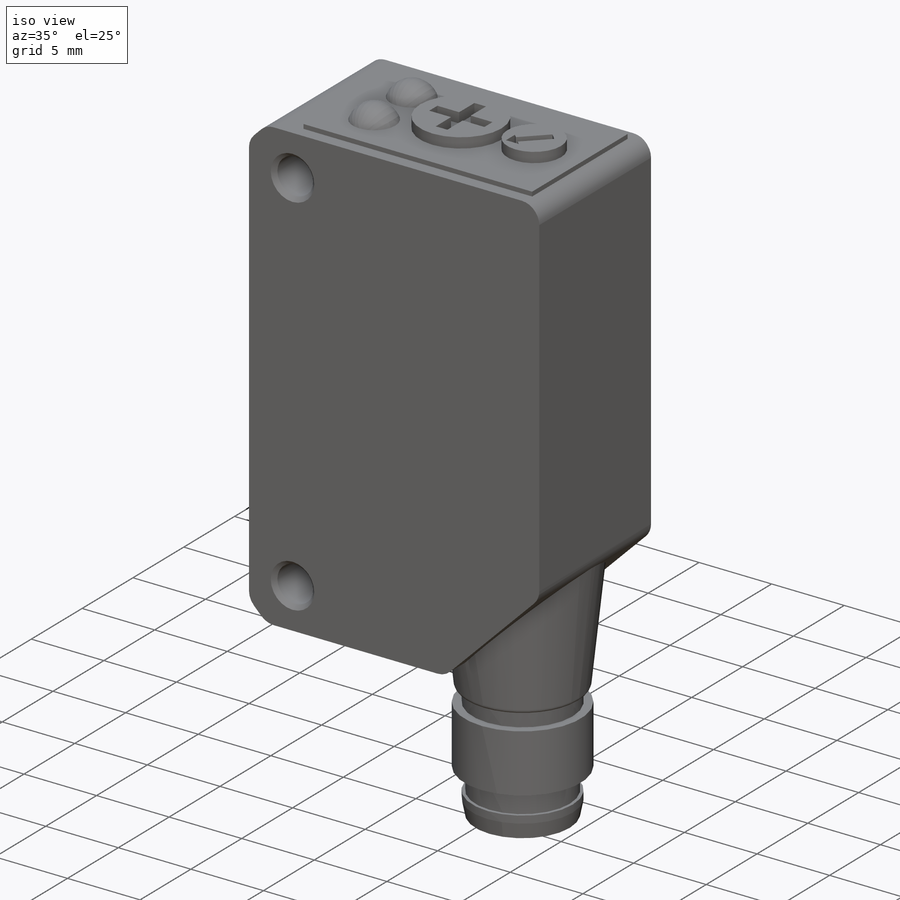
[diagram: iso view]
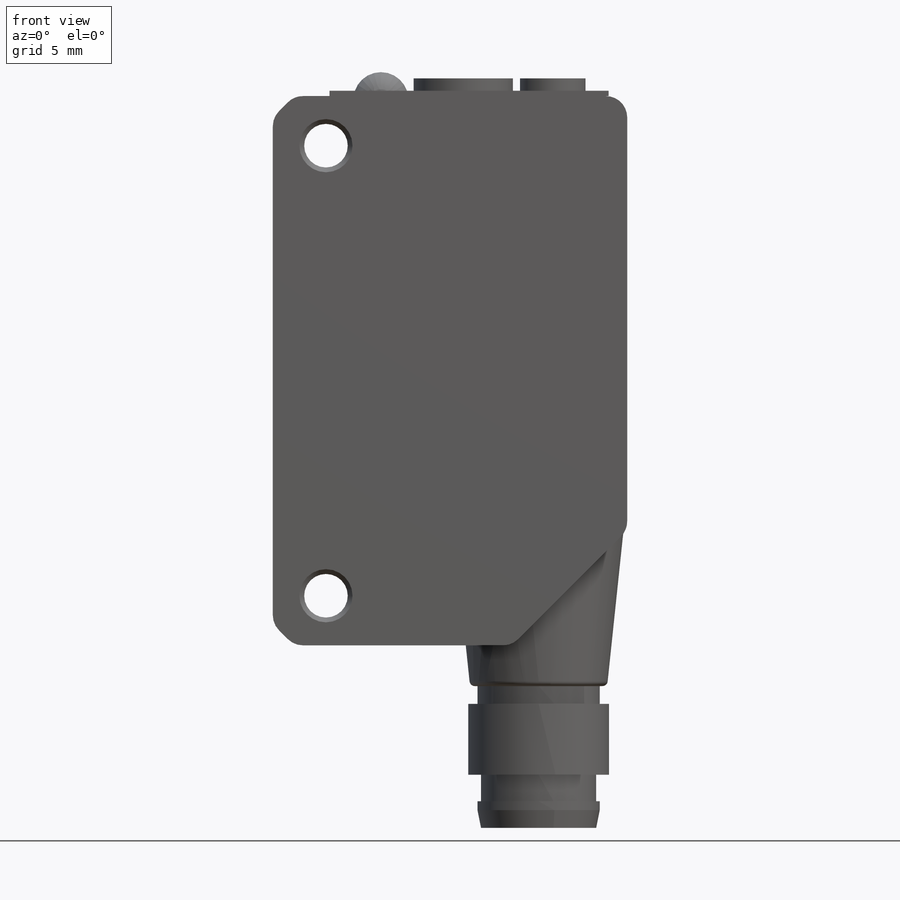
[diagram: front view]
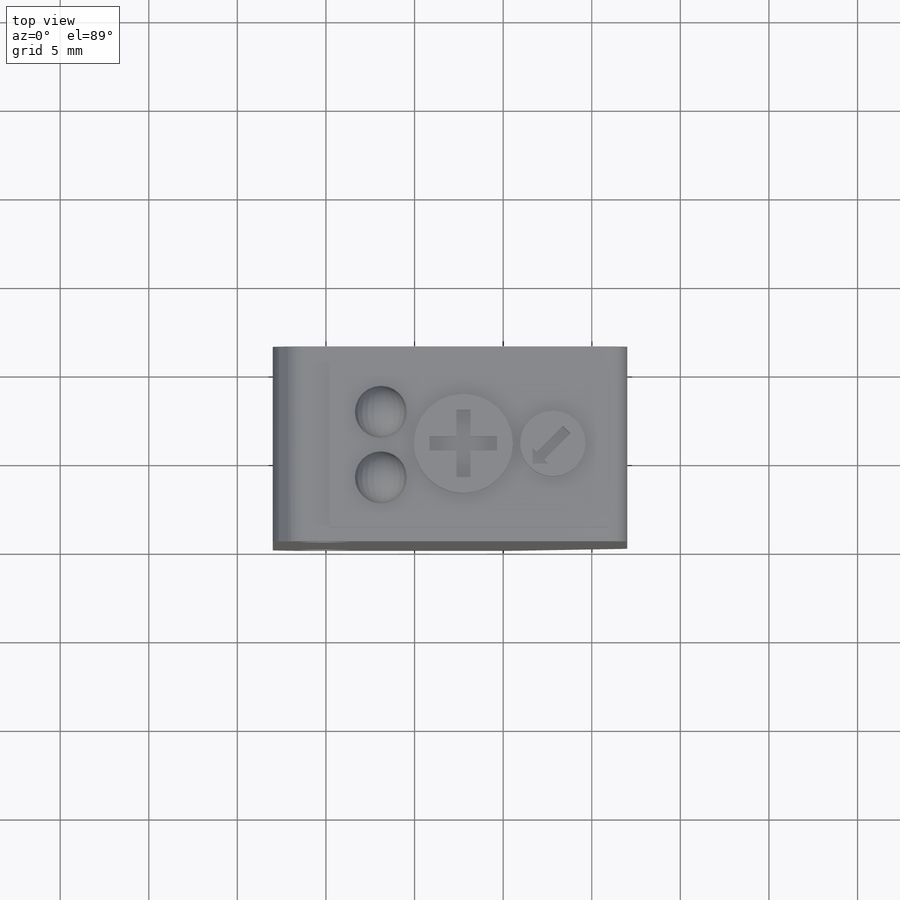
[diagram: top view]
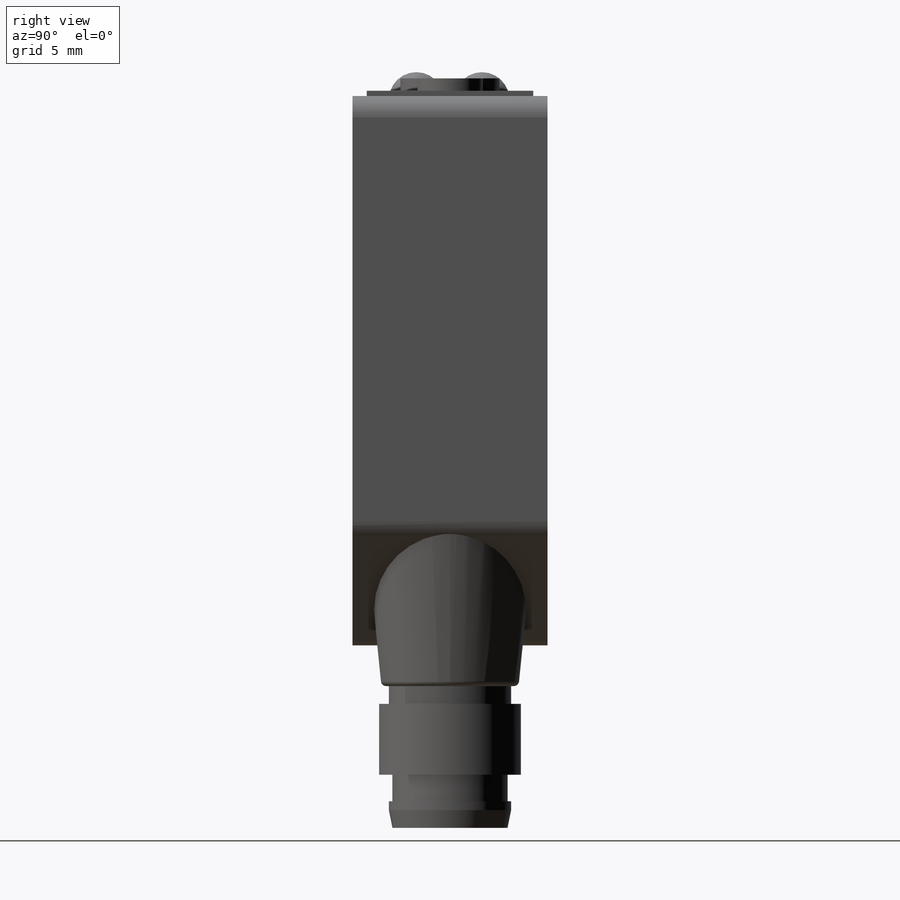
[diagram: right view]
SOLIDWORKS PART (.sldprt)
format: sldprt  version: not decoded by parser v0  size: 330,752 bytes
history: native  units: mm
features: plane x13, sketch x12, cut_extrude x4, extrude x3, revolve x3, thread x3, cut_revolve x2, material x1 (+12 scaffold rows collapsed)
feature tree (53):
  scaffold x12  (default folders/planes/origin — collapsed)
  material  "Material <not specified>"
  plane  "Plane1"
  sketch  "Sketch1"
  extrude  "Boss-Extrude1"  Depth=11mm
  plane  "Plane2"
  sketch  "Sketch2"
  revolve  "Revolve1"  [1 undecoded]
  thread  "Cosmetic Thread1"  Diameter=4mm  [1 undecoded]
  plane  "Plane3"
  sketch  "Sketch3"
  cut_extrude  "Cut-Extrude1"  Depth=4mm
  plane  "Plane4"
  sketch  "Sketch4"
  extrude  "Boss-Extrude2"  Depth=1mm
  plane  "Plane5"
  sketch  "Sketch5"
  cut_extrude  "Cut-Extrude2"  Depth=1mm
  plane  "Plane6"
  sketch  "Sketch6"
  extrude  "Boss-Extrude3"  Depth=0.3mm
  plane  "Plane7"
  sketch  "Sketch7"
  revolve  "Revolve2"  Angle=360deg
  plane  "Plane8"
  sketch  "Sketch8"
  cut_extrude  "Cut-Extrude3"  Depth=0.2mm
  plane  "Plane9"
  sketch  "Sketch9"
  cut_extrude  "Cut-Extrude4"  Depth=0.1mm
  plane  "Plane10"
  sketch  "Sketch10"
  cut_revolve  "Cut-Revolve1"  [1 undecoded]
  thread  "Cosmetic Thread2"  Diameter=11mm  [1 undecoded]
  plane  "Plane11"
  sketch  "Sketch11"
  cut_revolve  "Cut-Revolve2"  [1 undecoded]
  thread  "Cosmetic Thread3"  Diameter=11mm  [1 undecoded]
  plane  "Plane12"
  sketch  "Sketch12"
  revolve  "Revolve3"  Angle=360deg
  plane  "Plane13"
decode coverage: 12 of 27 modeling features carry decoded parameters
note: 6 parameter values undecoded
summary: no parameter record found for 3 features
note: suppression state not decoded; provenance and decode notes live in map.json
